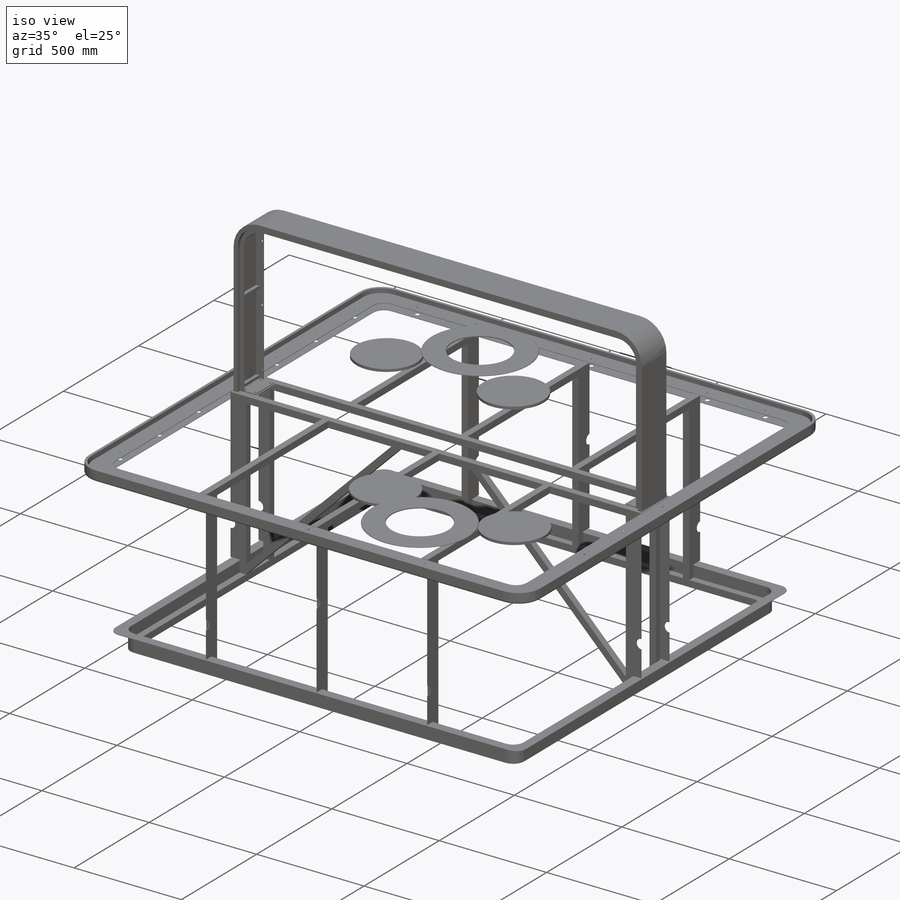
[diagram: iso view]
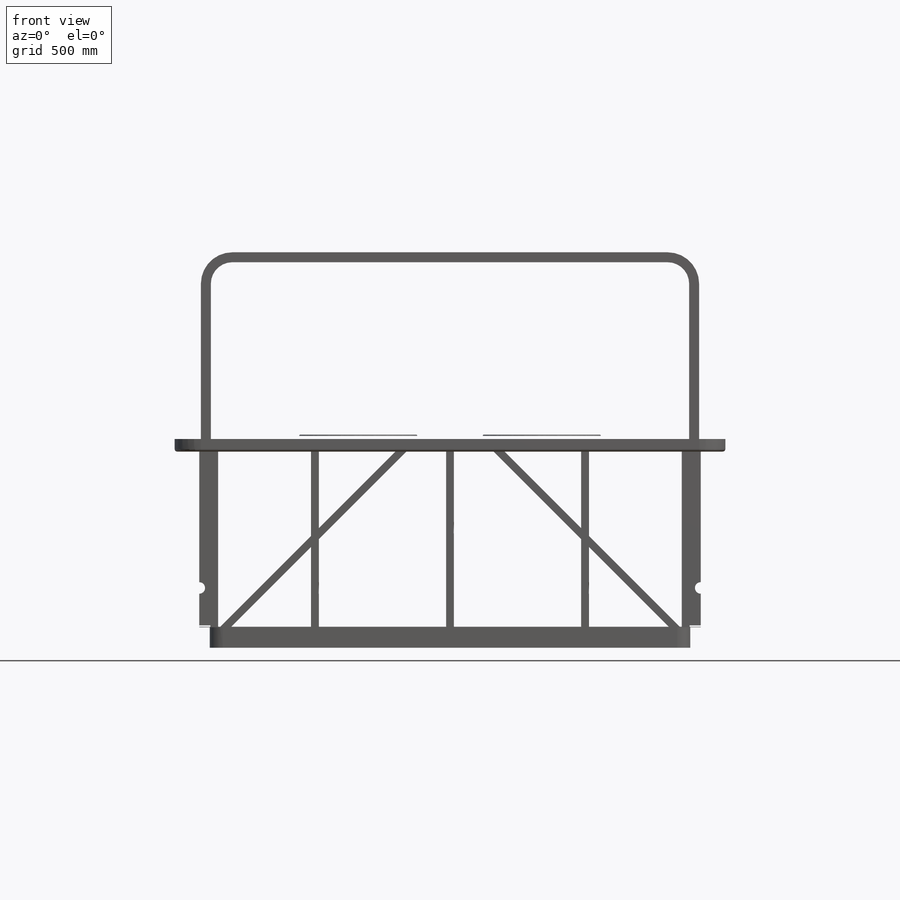
[diagram: front view]
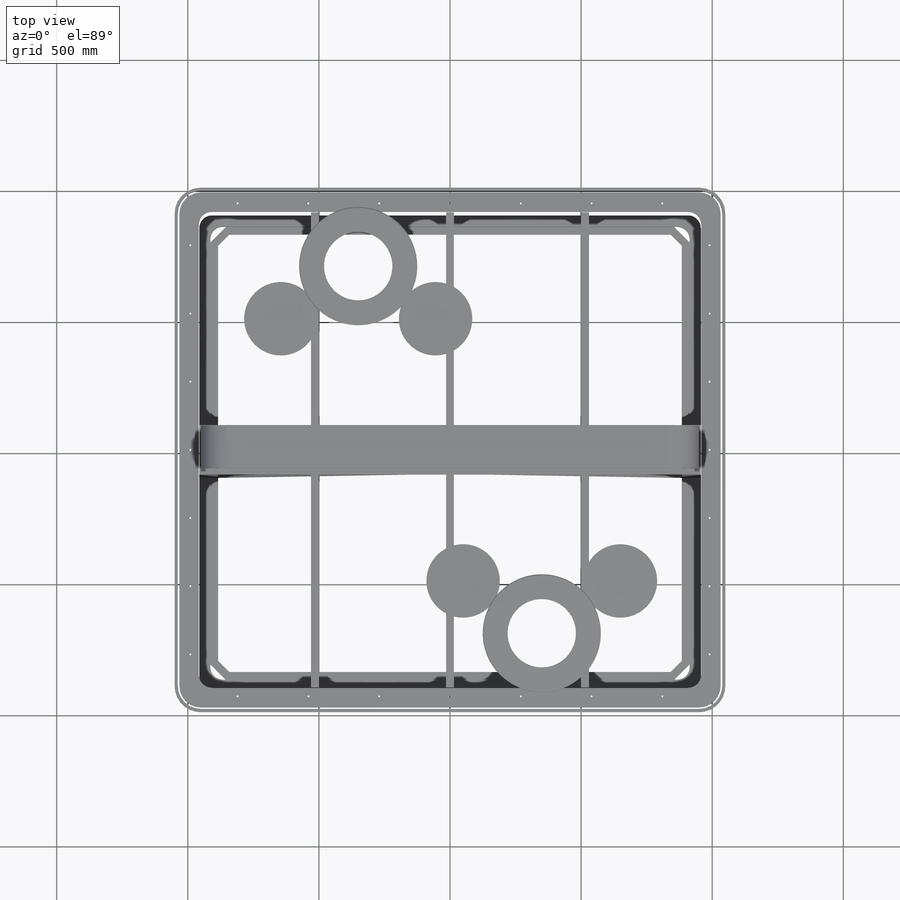
[diagram: top view]
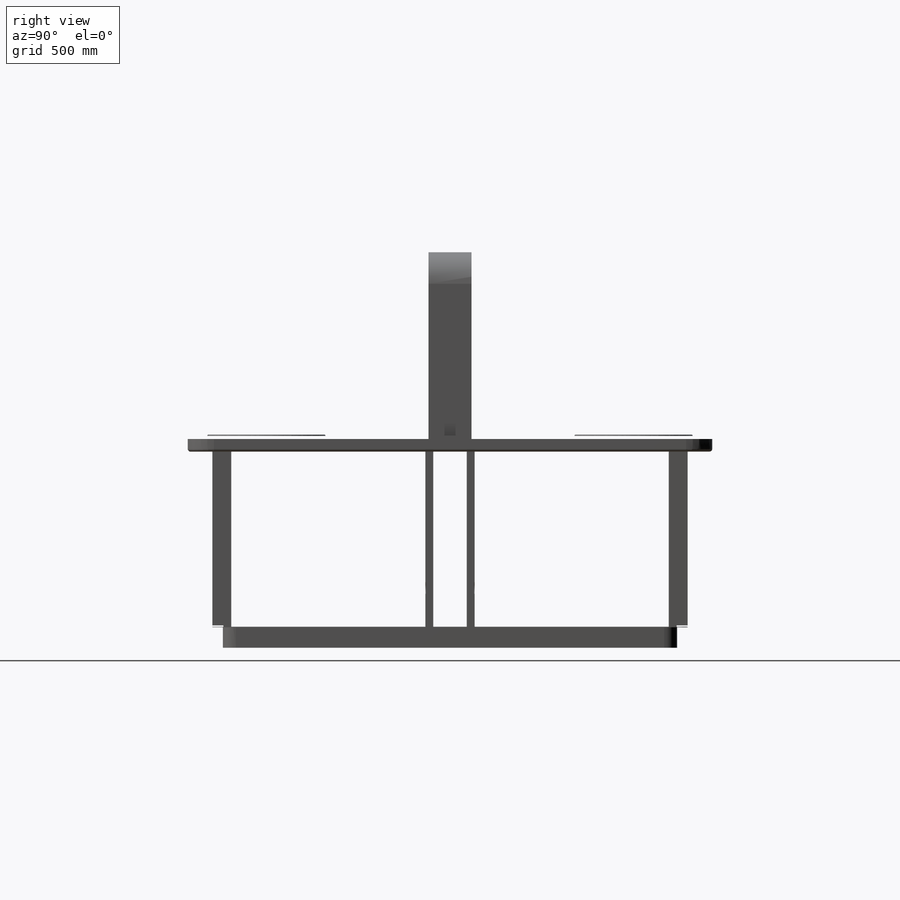
[diagram: right view]
SOLIDWORKS PART (.sldprt)
format: sldprt  version: not decoded by parser v0  size: 3,505,152 bytes
history: native  units: mm
features: sketch x88, thread x38, extrude x32, fillet x21, cut_extrude x16, hole x14, plane x8, mirror x8, sweep x2, chamfer x2, material x1, delete_body x1 (+9 scaffold rows collapsed)
feature tree (240):
  scaffold x9  (default folders/planes/origin — collapsed)
  material  "材质 <未指定>"
  plane  "前视"
  plane  "上视"
  plane  "右视"
  sketch  "草图1"  dims[c1.D1=~101.70352mm c1.D2=~1514.497293mm c1.D3=1440.0mm c1.D4=~1316.00985mm c1.D5=300.0mm c1.D7=1440.0mm c1.D8=80.0mm c1.D9=100.0mm c1.D10=100.0mm c1.D11=2450.0mm c2.D1=3100.0mm c2.D2=~2877.60217mm c2.D6=360.0mm c2.D7=200.0mm c2.D10=~1053.483186mm c2.D4=3.0]
  sketch  "草图2"  dims[c1.D3=260.0mm c1.D4=260.0mm c1.D12=260.0mm c1.D15=260.0mm c1.D17=~81.516383mm c1.D16=208.0mm c1.D18=240.0mm c1.D19=150.0mm c1.D20=200.0mm c1.D21=240.0mm c1.D1=2000.0mm c1.D2=2100.0mm c1.D5=100.0mm c1.D6=160.0mm c1.D7=1900.0mm c1.D8=920.0mm c1.D9=300.0mm c1.D10=500.0mm c1.D11=540.0mm c2.D12=600.0mm c2.D13=320.0mm c2.D14=700.0mm c2.D15=90.0mm c2.D16=~258.11982mm c2.D17=191.0mm c2.D22=300.0mm c2.D23=500.0mm c2.D24=700.0mm c2.D25=590.0mm]
  extrude  "凸台-拉伸1"  Depth=12mm
  fillet  "圆角1"  Radius=100mm
  extrude  "圆角2"  Depth=10mm
  sketch  "草图4"  dims[c1.D1=0.0mm c2.D1=48.0mm c2.D5=12.0mm c2.D6=1.0mm c2.D7=5.0mm]
  extrude  "圆角3"  Depth=10mm
  sketch  "草图5"  dims[D1=12.0mm]
  extrude  "凸台-拉伸2"  Depth=17mm
  sketch  "草图6"  dims[D1=0.0mm]
  fillet  "拉伸-薄壁2"  Radius=2mm
  sketch  "草图19"  dims[D1=40.0mm]
  cut_extrude  "切除-拉伸5"  [1 undecoded]
  plane  "基准面3"  Offset=27mm
  sketch  "草图7"  dims[D4=50.0mm D1=0.0mm D2=80.0mm D3=2.0mm]
  extrude  "凸台-拉伸3"  Depth=2mm
  plane  "基准面1"  Offset=670mm
  plane  "基准面2"  Offset=520mm
  sketch  "草图8"
  fillet  "拉伸-薄壁3"  Radius=2mm
  sketch  "草图9"  dims[D1=426.0mm D2=842.0mm D3=230.0mm]
  cut_extrude  "切除-拉伸2"  [1 undecoded]
  extrude  "圆角5"  Depth=100mm
  extrude  "圆角6"  Depth=60mm
  fillet  "拉伸-薄壁5"  [1 undecoded]
  sketch  "草图8<3>"  dims[D5=2.0mm D6=10.0mm D7=5.0mm]
  cut_extrude  "切除-拉伸4"  [1 undecoded]
  sketch  "草图9<3>"  dims[D1=2000.0mm]
  extrude  "圆角7"  Depth=100mm
  extrude  "圆角8"  Depth=60mm
  sketch  "草图10"  dims[D1=2000.0mm D5=5.0mm D6=5.0mm D7=5.0mm]
  sketch  "草图11"  dims[D2=10.0mm D1=2.0mm D3=2.0mm]
  sweep  "扫描2"
  sketch  "草图12"  dims[D1=2.0mm]
  sweep  "扫描3"
  sketch  "草图13"  dims[D2=50.0mm D1=40.0mm]
  extrude  "凸台-拉伸5"  Depth=2mm
  sketch  "草图14"
  fillet  "拉伸-薄壁6"  Radius=80mm
  sketch  "草图17"  dims[D1=64.0mm D2=30.0mm D3=16.0mm]
  fillet  "拉伸-薄壁8"  Radius=2mm
  sketch  "草图18"  dims[D1=30.0mm D2=1000.0mm D3=16.0mm]
  fillet  "拉伸-薄壁9"  Radius=2mm
  extrude  "圆角9"  Depth=50mm
  sketch  "草图20"
  fillet  "拉伸-薄壁10"  Radius=30mm
  sketch  "草图21"
  extrude  "凸台-拉伸6"  [1 undecoded]
  sketch  "草图22"  dims[D1=5.0mm D2=5.0mm]
  fillet  "拉伸-薄壁11"  Radius=2mm
  sketch  "草图23"  dims[D1=44.0mm]
  cut_extrude  "切除-拉伸6"  [1 undecoded]
  sketch  "草图24"  dims[D1=44.0mm]
  cut_extrude  "切除-拉伸7"  Depth=30mm
  sketch  "草图25"
  extrude  "凸台-拉伸7"  [1 undecoded]
  sketch  "草图26"  dims[D1=5.0mm]
  fillet  "拉伸-薄壁12"  Radius=2mm
  sketch  "草图27"  dims[D1=44.0mm]
  cut_extrude  "切除-拉伸8"  Depth=30mm
  mirror  "镜向1"
  mirror  "镜向2"
  sketch  "草图28"  dims[D1=100.0mm]
  extrude  "凸台-拉伸8"  Depth=4mm
  sketch  "草图29"  dims[D3=120.0mm D1=1900.0mm D2=700.0mm]
  plane  "基准面4"  Offset=80mm
  sketch  "草图30"  dims[D1=2.0mm]
  fillet  "拉伸-薄壁13"  Radius=16mm
  sketch  "草图33"
  fillet  "拉伸-薄壁15"  Radius=2mm
  mirror  "镜向3"
  sketch  "草图31"  dims[D1=360.0mm D2=400.0mm]
  extrude  "凸台-拉伸9"  [1 undecoded]
  sketch  "草图38"
  fillet  "拉伸-薄壁17"  Radius=70mm
  mirror  "镜向4"
  sketch  "草图32"
  fillet  "拉伸-薄壁14"  Radius=2mm
  sketch  "草图35"
  fillet  "拉伸-薄壁16"  Radius=2mm
  sketch  "草图37"  dims[D1=2.0mm]
  extrude  "凸台-拉伸10"  Depth=12mm
  sketch  "草图39"
  hole  "打孔尺寸根据开槽沉头木螺钉的类型1"  [1 undecoded]
  sketch  "草图41"  dims[D2=270.0mm D3=270.0mm D4=400.0mm D5=400.0mm D6=15.0mm D1=10.0mm]
  sketch  "草图40"  dims[hole-wizard template sketch: 39 standard entries collapsed; hole parameters kept: c13.孔直径=7.0mm c13.孔深度=50.0mm c13.近端锥形沉头孔直径=14.0mm c13.D4=~33.297463mm c13.近端锥形沉头孔角度=90.0deg c14.D5=~14.816244mm c14.导头角度=118.0deg]
  sketch  "草图42"  dims[D1=1.0mm D2=1.0mm D3=1.0mm D4=1.0mm]
  cut_extrude  "切除-拉伸9"  [1 undecoded]
  extrude  "圆角10"  Depth=2mm
  hole  "打孔尺寸根据开槽沉头木螺钉的类型5"  [1 undecoded]
  sketch  "草图44"  dims[D1=100.0mm D2=15.0mm D4=45.0mm D3=2.0]
  sketch  "草图43"  dims[hole-wizard template sketch: 46 standard entries collapsed; hole parameters kept: c15.孔直径=9.0mm c15.孔深度=20.0mm c15.D3=~14.816244mm c15.导头角度=118.0deg]
  sketch  "草图45"  dims[D1=0.0mm]
  cut_extrude  "切除-拉伸11"  Depth=50mm
  sketch  "草图46"  dims[c1.D2=30.0mm c1.D1=30.0mm c2.D2=30.0mm]
  cut_extrude  "切除-拉伸12"  Depth=50mm
  sketch  "草图47"  dims[c1.D2=20.0mm c1.D1=20.0mm c2.D2=30.0mm]
  extrude  "凸台-拉伸11"  Depth=12mm
  extrude  "圆角11"  Depth=2mm
  sketch  "草图48"  dims[D1=0.5mm]
  cut_extrude  "切除-拉伸14"  Depth=50mm
  hole  "M6 螺纹孔1"  [1 undecoded]
  sketch  "草图50"  dims[D1=100.0mm D2=3.0]
  sketch  "草图51"  dims[hole-wizard template sketch: 59 standard entries collapsed; hole parameters kept: c18.通孔螺纹孔钻头直径=5.0mm c18.通孔螺纹孔钻头深度=808.0mm]
  thread  "孔螺蚊线6"  Diameter=6mm  [1 undecoded]
  thread  "孔螺蚊线7"  Diameter=6mm  [1 undecoded]
  thread  "孔螺蚊线8"  Diameter=6mm  [1 undecoded]
  sketch  "草图52"  dims[c1.D1=450.0mm c1.D3=450.0mm c2.D1=0.5mm c2.D2=0.5mm c2.D4=0.5mm]
  extrude  "凸台-拉伸12"  Depth=5mm
  chamfer  "倒角1"  Distance=1mm Angle=45deg
  extrude  "圆角12"  Depth=4mm
  chamfer  "倒角2"  Distance=1mm Angle=45deg
  extrude  "圆角13"  Depth=4mm
  sketch  "草图53"  dims[D1=0.0mm]
  cut_extrude  "切除-拉伸15"  [1 undecoded]
  sketch  "草图54"  dims[c1.D1=~592.119684mm c2.D1=45.0deg c2.D2=30.0mm]
  extrude  "凸台-拉伸13"  Depth=30mm
  mirror  "镜向5"
  sketch  "草图55"  dims[D1=75.0mm]
  sketch  "草图56"  dims[D1=75.0mm]
  sketch  "草图57"  dims[D1=0.0mm D2=6.0mm]
  cut_extrude  "切除-拉伸16"  [1 undecoded]
  fillet  "拉伸-薄壁19"  [1 undecoded]
  sketch  "草图57<4>"  dims[D5=2.0mm D6=1.0mm D7=5.0mm]
  hole  "Ø12.0 (12) 直径孔1"  [1 undecoded]
  sketch  "草图59"  dims[D4=270.0mm D5=260.0mm D1=40.0mm D2=5.0 D3=5.0]
  sketch  "草图58"  dims[hole-wizard template sketch: 59 standard entries collapsed; hole parameters kept: c18.通孔孔直径=20.0mm c18.通孔孔深度=760.0mm]
  hole  "打孔尺寸根据开槽沉头木螺钉的类型2"  [1 undecoded]
  sketch  "草图62"
  sketch  "草图61"  dims[hole-wizard template sketch: 54 standard entries collapsed; hole parameters kept: c17.通孔孔直径=7.0mm c17.通孔孔深度=731.0mm c17.近端锥形沉头孔直径=10.0mm c17.D4=~3.666174mm c17.近端锥形沉头孔角度=90.0deg]
  hole  "M6 螺纹孔4"  [1 undecoded]
  sketch  "草图65"
  sketch  "草图63"  dims[hole-wizard template sketch: 59 standard entries collapsed; hole parameters kept: c18.通孔螺纹孔钻头直径=5.0mm c18.通孔螺纹孔钻头深度=729.0mm]
  thread  "孔螺蚊线11"  Diameter=6mm  [1 undecoded]
  thread  "孔螺蚊线12"  Diameter=6mm  [1 undecoded]
  thread  "孔螺蚊线13"  Diameter=6mm  [1 undecoded]
  thread  "孔螺蚊线14"  Diameter=6mm  [1 undecoded]
  thread  "孔螺蚊线15"  Diameter=6mm  [1 undecoded]
  thread  "孔螺蚊线16"  Diameter=6mm  [1 undecoded]
  thread  "孔螺蚊线17"  Diameter=6mm  [1 undecoded]
  thread  "孔螺蚊线18"  Diameter=6mm  [1 undecoded]
  thread  "孔螺蚊线19"  Diameter=6mm  [1 undecoded]
  thread  "孔螺蚊线20"  Diameter=6mm  [1 undecoded]
  thread  "孔螺蚊线21"  Diameter=6mm  [1 undecoded]
  thread  "孔螺蚊线22"  Diameter=6mm  [1 undecoded]
  thread  "孔螺蚊线23"  Diameter=6mm  [1 undecoded]
  thread  "孔螺蚊线24"  Diameter=6mm  [1 undecoded]
  thread  "孔螺蚊线25"  Diameter=6mm  [1 undecoded]
  thread  "孔螺蚊线26"  Diameter=6mm  [1 undecoded]
  thread  "孔螺蚊线27"  Diameter=6mm  [1 undecoded]
  thread  "孔螺蚊线28"  Diameter=6mm  [1 undecoded]
  thread  "孔螺蚊线29"  Diameter=6mm  [1 undecoded]
  thread  "孔螺蚊线30"  Diameter=6mm  [1 undecoded]
  thread  "孔螺蚊线31"  Diameter=6mm  [1 undecoded]
  thread  "孔螺蚊线32"  Diameter=6mm  [1 undecoded]
  thread  "孔螺蚊线33"  Diameter=6mm  [1 undecoded]
  thread  "孔螺蚊线34"  Diameter=6mm  [1 undecoded]
  thread  "孔螺蚊线35"  Diameter=6mm  [1 undecoded]
  thread  "孔螺蚊线36"  Diameter=6mm  [1 undecoded]
  thread  "孔螺蚊线37"  Diameter=6mm  [1 undecoded]
  thread  "孔螺蚊线38"  Diameter=6mm  [1 undecoded]
  sketch  "草图66"  dims[D1=40.0mm]
  extrude  "凸台-拉伸14"  Depth=10mm
  hole  "M12 螺纹孔1"  [1 undecoded]
  sketch  "草图68"  dims[D1=15.0mm]
  sketch  "草图67"  dims[hole-wizard template sketch: 59 standard entries collapsed; hole parameters kept: c18.通孔螺纹孔钻头直径=10.2mm c18.通孔螺纹孔钻头深度=1488.0mm]
  thread  "孔螺蚊线39"  Diameter=10mm  [1 undecoded]
  mirror  "镜向6"
  mirror  "镜向7"
  hole  "M6 螺纹孔2"  [1 undecoded]
  sketch  "草图70"  dims[D2=100.0mm D1=4.0]
  sketch  "草图69"  dims[hole-wizard template sketch: 59 standard entries collapsed; hole parameters kept: c18.通孔螺纹孔钻头直径=5.0mm c18.通孔螺纹孔钻头深度=808.0mm]
  thread  "孔螺蚊线2"  Diameter=6mm  [1 undecoded]
  thread  "孔螺蚊线3"  Diameter=6mm  [1 undecoded]
  thread  "孔螺蚊线4"  Diameter=6mm  [1 undecoded]
  thread  "孔螺蚊线5"  Diameter=6mm  [1 undecoded]
  hole  "Ø20.0 (20) 直径孔1"  [1 undecoded]
  sketch  "草图72"
  sketch  "草图71"  dims[hole-wizard template sketch: 46 standard entries collapsed; hole parameters kept: c15.孔直径=20.0mm c15.孔深度=808.0mm c15.D3=~14.816244mm c15.导头角度=118.0deg]
  hole  "Ø10.0 (10) 直径孔1"  [1 undecoded]
  sketch  "草图74"
  sketch  "草图73"  dims[hole-wizard template sketch: 46 standard entries collapsed; hole parameters kept: c15.孔直径=10.0mm c15.孔深度=808.0mm c15.D3=~14.816244mm c15.导头角度=118.0deg]
  sketch  "草图75"
  cut_extrude  "切除-拉伸17"  [1 undecoded]
  sketch  "草图76"  dims[D1=15.0mm D2=1680.0mm]
  extrude  "凸台-拉伸15"  [1 undecoded]
  sketch  "草图78"  dims[D1=0.0mm]
  extrude  "凸台-拉伸17"  [1 undecoded]
  plane  "基准面5"  Offset=400mm
  sketch  "草图79"  dims[D1=30.0mm]
  fillet  "拉伸-薄壁20"  Radius=50mm
  hole  "Ø7.0 (7) 直径孔6"  [1 undecoded]
  sketch  "草图81"  dims[D1=90.0mm]
  sketch  "草图80"  dims[hole-wizard template sketch: 59 standard entries collapsed; hole parameters kept: c18.通孔孔直径=7.0mm c18.通孔孔深度=810.0mm]
  hole  "M6 螺纹孔3"  [1 undecoded]
  sketch  "草图83"
  sketch  "草图82"  dims[hole-wizard template sketch: 59 standard entries collapsed; hole parameters kept: c18.通孔螺纹孔钻头直径=5.0mm c18.通孔螺纹孔钻头深度=12.0mm]
  thread  "孔螺蚊线9"  Diameter=6mm  [1 undecoded]
  thread  "孔螺蚊线10"  Diameter=6mm  [1 undecoded]
  hole  "Ø7.0 (7) 直径孔7"  [1 undecoded]
  sketch  "草图85"  dims[D1=15.0mm]
  sketch  "草图86"  dims[hole-wizard template sketch: 59 standard entries collapsed; hole parameters kept: c18.通孔孔直径=7.0mm c18.通孔孔深度=1066.0mm]
  mirror  "镜向8"
  hole  "打孔尺寸根据开槽沉头木螺钉的类型3"  [1 undecoded]
  sketch  "草图88"  dims[D1=400.0mm D2=400.0mm]
  sketch  "草图87"  dims[hole-wizard template sketch: 54 standard entries collapsed; hole parameters kept: c17.通孔孔直径=7.0mm c17.通孔孔深度=1078.0mm c17.近端锥形沉头孔直径=14.0mm c17.D4=~3.666174mm c17.近端锥形沉头孔角度=90.0deg]
  sketch  "草图89"  dims[D1=100.0mm D2=60.0mm]
  fillet  "拉伸-薄壁21"  Radius=2288mm
  fillet  "拉伸-薄壁22"  [1 undecoded]
  sketch  "草图89<2>"  dims[D1=2358.0mm D5=2.0mm D6=10.0mm D7=5.0mm]
  sketch  "草图90"  dims[D1=0.0mm D2=20.0mm]
  cut_extrude  "切除-拉伸18"  [1 undecoded]
  sketch  "草图92"  dims[D1=0.0mm]
  fillet  "拉伸-薄壁23"  Radius=438mm
  cut_extrude  "切除-拉伸19"  [1 undecoded]
  sketch  "草图9<4>"  dims[D1=2122.0mm]
  extrude  "圆角17"  Depth=100mm
  extrude  "圆角18"  Depth=60mm
  extrude  "圆角15"  Depth=1.5mm
  fillet  "拉伸-薄壁24"  [1 undecoded]
  sketch  "草图92<2>"  dims[D1=476.0mm D5=2.0mm D6=10.0mm D7=5.0mm]
  cut_extrude  "切除-拉伸20"  [1 undecoded]
  sketch  "草图9<5>"  dims[D1=2107.0mm]
  extrude  "圆角19"  Depth=100mm
  extrude  "圆角20"  Depth=60mm
  extrude  "圆角16"  Depth=1.5mm
  delete_body  "实体-删除1"
decode coverage: 161 of 222 modeling features carry decoded parameters
note: ~ marks probable driven/reference dimensions
note: 72 parameter values undecoded
summary: no parameter record found for 34 features
note: suppression state not decoded; provenance and decode notes live in map.json
